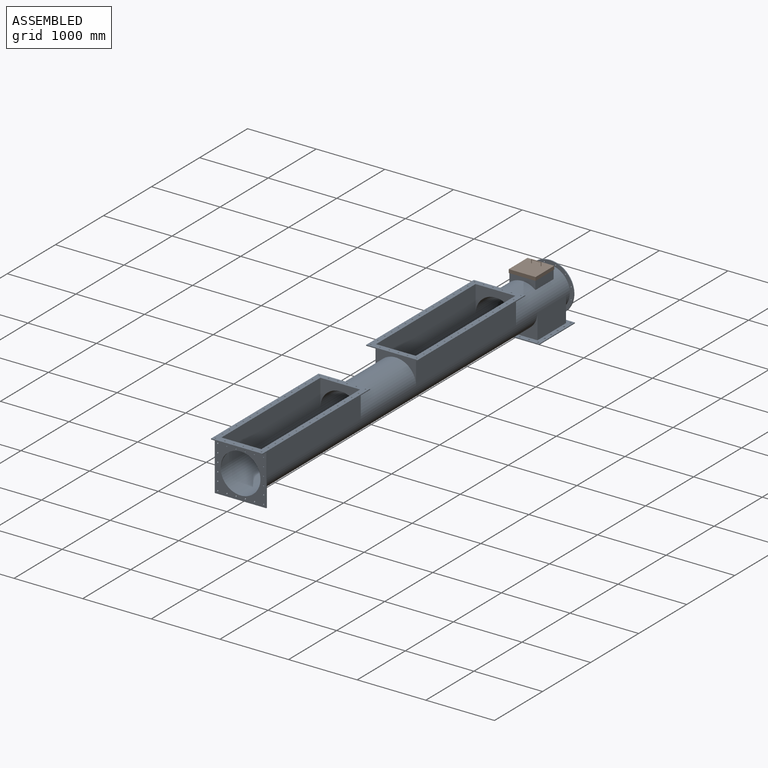
[diagram: assembled view]
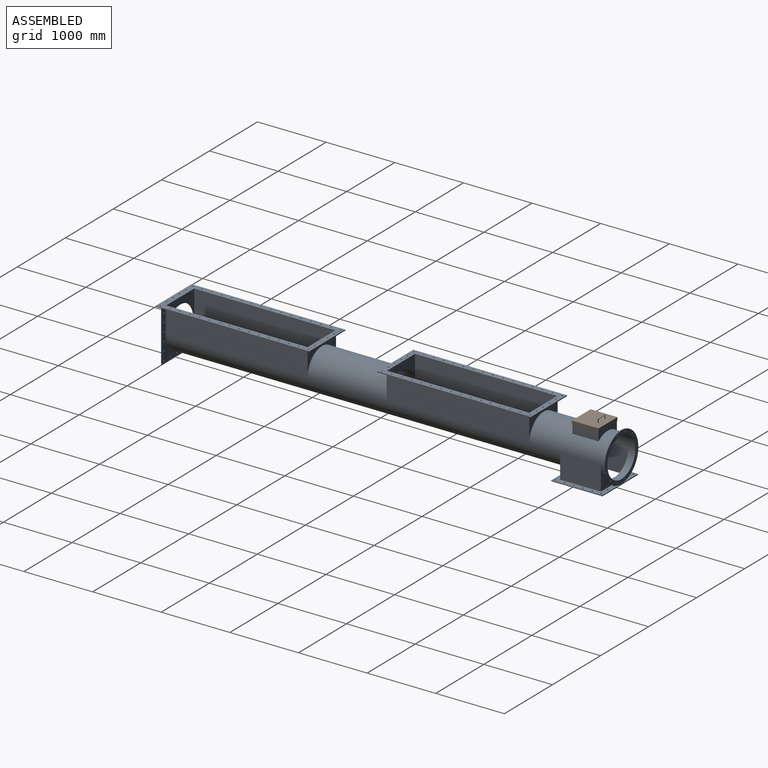
[diagram: assembled view, second angle]
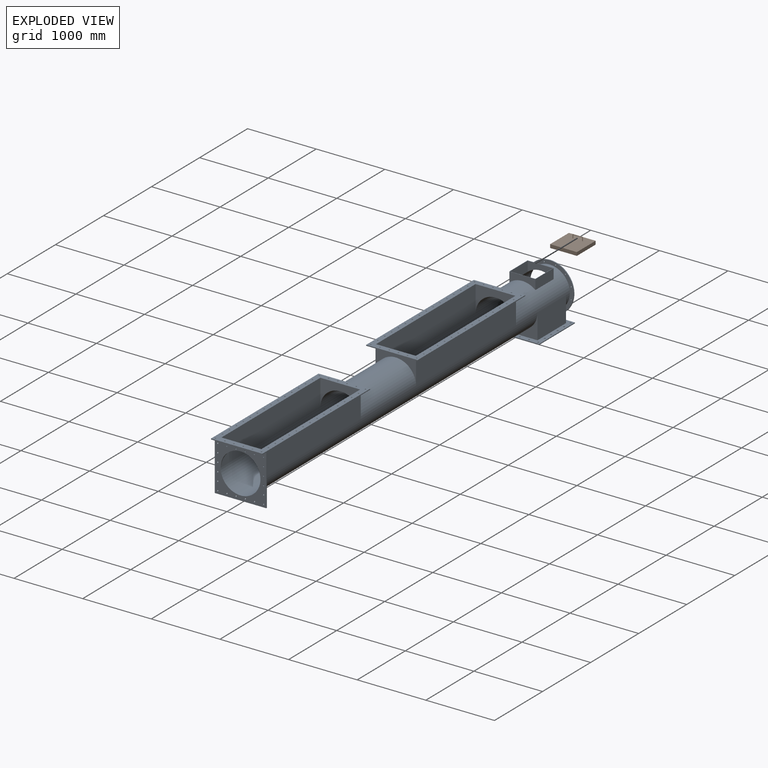
[diagram: exploded view]
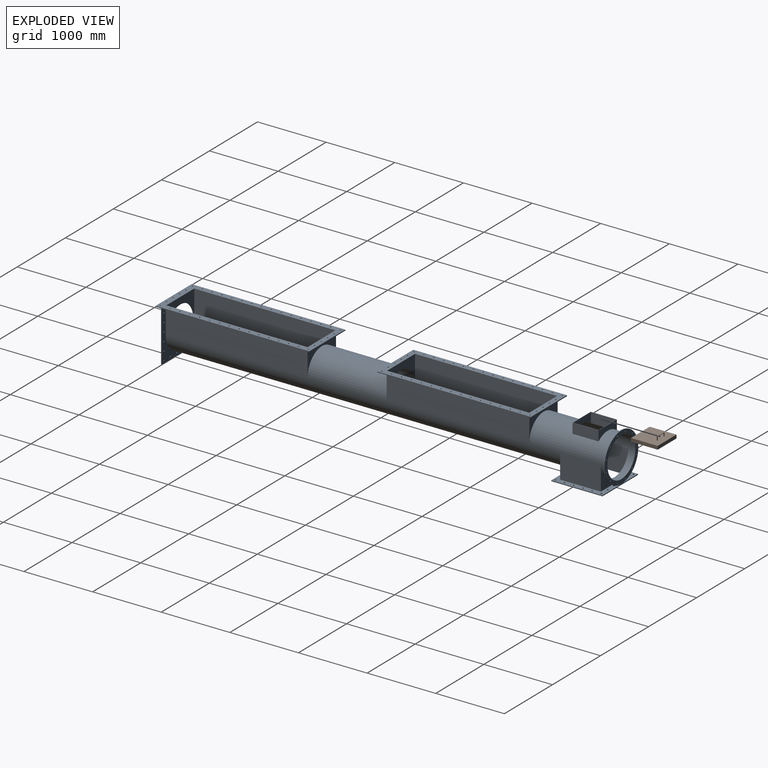
[diagram: exploded view, second angle]
ASSEMBLY  parts=2 mates=3
PART A: 207 faces, bbox 750.2x6525x770 mm
  f0: cylinder r=294.76mm len=6419.6mm, axis (0,1,0), area 7343238.7mm2, adj f15,f16,f17,f18,f36,f37,f38,f39
  f1: cylinder r=290mm len=6445mm, axis (0,1,0), area 7310439.7mm2, adj f3,f4,f5,f7,f8,f9,f11,f12
  f2: plane 380x380mm, normal (0,0,1), area 7500mm2, adj f123,f124,f125,f126,f127,f128,f129,f130
  f3: plane 750x735mm, normal (0,-1,0), area 281952.7mm2, adj f1,f131,f132,f133,f135,f184,f185,f186
  f4: plane 703.83x703.83mm, normal (0,1,0), area 122479.3mm2, adj f1,f35,f71,f72,f73,f74,f75,f76
  f5: plane 2057.78x0.02mm, normal (0,0,1), area 48.6mm2, adj f1,f7,f10,f11
  f6: plane 2057.78x393.7mm, normal (1,0,0), area 810146mm2, adj f8,f9,f12,f13,f14,f142
  f7: plane 3.7x0.02mm, normal (0,1,0), area 0mm2, adj f1,f5,f10
  f8: plane 580x390mm, normal (0,1,0), area 94096mm2, adj f1,f6,f10,f142
  f9: plane 3.7x0.02mm, normal (0,1,0), area 0mm2, adj f1,f6,f14
  f10: plane 2057.78x393.7mm, normal (-1,0,0), area 810146mm2, adj f5,f7,f8,f11,f12,f142
  f11: plane 3.7x0.02mm, normal (0,-1,0), area 0mm2, adj f1,f5,f10
  f12: plane 580x390mm, normal (0,-1,0), area 94096mm2, adj f1,f6,f10,f142
  f13: plane 3.7x0.02mm, normal (0,-1,0), area 0mm2, adj f1,f6,f14
  f14: plane 2057.78x0.02mm, normal (0,0,1), area 48.6mm2, adj f1,f6,f9,f13
  f15: plane 2080x377.3mm, normal (-1,0,0), area 784784mm2, adj f0,f17,f18,f29
  f16: plane 2080x377.3mm, normal (1,0,0), area 784784mm2, adj f0,f17,f18,f29
  f17: plane 589.53x377.3mm, normal (0,1,0), area 85949.3mm2, adj f0,f15,f16,f29
  f18: plane 589.53x377.3mm, normal (0,-1,0), area 85949.3mm2, adj f0,f15,f16,f29
  f19: plane 2070.48x0.02mm, normal (0,0,1), area 48.9mm2, adj f1,f21,f23,f24
  f20: plane 2070.48x393.7mm, normal (1,0,0), area 815146mm2, adj f22,f25,f26,f27,f28,f34
  f21: plane 3.7x0.02mm, normal (0,1,0), area 0mm2, adj f1,f19,f23
  f22: plane 580x390mm, normal (0,1,0), area 94096mm2, adj f1,f20,f23,f34
  f23: plane 2070.48x393.7mm, normal (-1,0,0), area 815146mm2, adj f19,f21,f22,f24,f25,f34
  f24: plane 3.7x0.02mm, normal (0,-1,0), area 0mm2, adj f1,f19,f23
  f25: plane 580x390mm, normal (0,-1,0), area 94096mm2, adj f1,f20,f23,f34
  f26: plane 3.7x0.02mm, normal (0,1,0), area 0mm2, adj f1,f20,f28
  f27: plane 3.7x0.02mm, normal (0,-1,0), area 0mm2, adj f1,f20,f28
  f28: plane 2070.48x0.02mm, normal (0,0,1), area 48.9mm2, adj f1,f20,f26,f27
  f29: plane 2240x750mm, normal (0,0,-1), area 443609.2mm2, adj f15,f16,f17,f18,f30,f31,f32,f33
  f30: plane 2240x12.7mm, normal (-1,0,0), area 28448mm2, adj f29,f31,f33,f34
  f31: plane 750x12.7mm, normal (0,-1,0), area 9525mm2, adj f29,f30,f32,f34
  f32: plane 2240x12.7mm, normal (1,0,0), area 28448mm2, adj f29,f31,f33,f34
  f33: plane 750x12.7mm, normal (0,1,0), area 9525mm2, adj f29,f30,f32,f34
  f34: plane 2240x750mm, normal (0,0,1), area 468945.7mm2, adj f20,f22,f23,f25,f30,f31,f32,f33
  f35: cylinder r=351.91mm len=703.83mm, axis (0,1,0), area 28081.4mm2, adj f4,f36
  f36: plane 703.83x703.83mm, normal (0,-1,0), area 113730.1mm2, adj f0,f35,f71,f72,f73,f74,f75,f76
  f37: plane 592.58x367.3mm, normal (-1,0,0), area 217655.4mm2, adj f0,f39,f40,f50
  f38: plane 592.58x367.3mm, normal (1,0,0), area 217655.4mm2, adj f0,f39,f40,f50
  f39: plane 589.53x367.3mm, normal (0,1,0), area 80054mm2, adj f0,f37,f38,f50
  f40: plane 589.53x367.3mm, normal (0,-1,0), area 80054mm2, adj f0,f37,f38,f50
  f41: plane 576.83x349.7mm, normal (0,-1,0), area 87153.7mm2, adj f1,f42,f44,f49
  f42: plane 579.82x349.7mm, normal (-1,0,0), area 202760.4mm2, adj f1,f41,f43,f49
  f43: plane 576.83x349.7mm, normal (0,1,0), area 87153.7mm2, adj f1,f42,f44,f49
  f44: plane 579.82x349.7mm, normal (1,0,0), area 202760.4mm2, adj f1,f41,f43,f49
  f45: plane 741.93x12.7mm, normal (0,1,0), area 9422.4mm2, adj f46,f48,f49,f50
  f46: plane 744.98x12.7mm, normal (1,0,0), area 9461.3mm2, adj f45,f47,f49,f50
  f47: plane 741.93x12.7mm, normal (0,-1,0), area 9422.4mm2, adj f46,f48,f49,f50
  f48: plane 744.98x12.7mm, normal (-1,0,0), area 9461.3mm2, adj f45,f47,f49,f50
  f49: plane 744.98x741.93mm, normal (0,0,-1), area 210509.4mm2, adj f41,f42,f43,f44,f45,f46,f47,f48
  f50: plane 744.98x741.93mm, normal (0,0,1), area 195619.9mm2, adj f37,f38,f39,f40,f45,f46,f47,f48
  f51: cylinder r=11.11mm len=22.23mm, axis (0,0,-1), area 886.7mm2, adj f49,f50
  f52: cylinder r=11.11mm len=22.23mm, axis (0,0,-1), area 886.7mm2, adj f49,f50
  f53: cylinder r=11.11mm len=22.23mm, axis (0,0,-1), area 886.7mm2, adj f49,f50
  f54: cylinder r=11.11mm len=22.23mm, axis (0,0,-1), area 886.7mm2, adj f49,f50
  f55: cylinder r=11.11mm len=22.23mm, axis (0,0,-1), area 886.7mm2, adj f49,f50
  f56: cylinder r=11.11mm len=22.23mm, axis (0,0,-1), area 886.7mm2, adj f49,f50
  f57: cylinder r=11.11mm len=22.23mm, axis (0,0,-1), area 886.7mm2, adj f49,f50
  f58: cylinder r=11.11mm len=22.23mm, axis (0,0,-1), area 886.7mm2, adj f49,f50
  f59: cylinder r=11.11mm len=22.23mm, axis (0,0,-1), area 886.7mm2, adj f49,f50
  f60: cylinder r=11.11mm len=22.23mm, axis (0,0,-1), area 886.7mm2, adj f49,f50
  f61: cylinder r=11.11mm len=22.23mm, axis (0,0,-1), area 886.7mm2, adj f49,f50
  f62: cylinder r=11.11mm len=22.23mm, axis (0,0,-1), area 886.7mm2, adj f49,f50
  f63: cylinder r=11.11mm len=22.23mm, axis (0,0,-1), area 886.7mm2, adj f49,f50
  f64: cylinder r=11.11mm len=22.23mm, axis (0,0,-1), area 886.7mm2, adj f49,f50
  f65: cylinder r=11.11mm len=22.23mm, axis (0,0,-1), area 886.7mm2, adj f49,f50
  f66: cylinder r=11.11mm len=22.23mm, axis (0,0,-1), area 886.7mm2, adj f49,f50
  f67: cylinder r=11.11mm len=22.23mm, axis (0,0,-1), area 886.7mm2, adj f49,f50
  f68: cylinder r=11.11mm len=22.23mm, axis (0,0,-1), area 886.7mm2, adj f49,f50
  f69: cylinder r=11.11mm len=22.23mm, axis (0,0,-1), area 886.7mm2, adj f49,f50
  f70: cylinder r=11.11mm len=22.23mm, axis (0,0,-1), area 886.7mm2, adj f49,f50
  f71: cylinder r=7.94mm len=15.88mm, axis (0,1,0), area 633.4mm2, adj f4,f36
  f72: cylinder r=7.94mm len=15.88mm, axis (0,1,0), area 633.4mm2, adj f4,f36
  f73: cylinder r=7.94mm len=15.88mm, axis (0,1,0), area 633.4mm2, adj f4,f36
  f74: cylinder r=7.94mm len=15.88mm, axis (0,1,0), area 633.4mm2, adj f4,f36
  f75: cylinder r=7.94mm len=15.88mm, axis (0,1,0), area 633.4mm2, adj f4,f36
  f76: cylinder r=7.94mm len=15.88mm, axis (0,1,0), area 633.4mm2, adj f4,f36
  f77: cylinder r=7.94mm len=15.88mm, axis (0,1,0), area 633.4mm2, adj f4,f36
  f78: cylinder r=7.94mm len=15.88mm, axis (0,1,0), area 633.4mm2, adj f4,f36
  f79: cylinder r=7.94mm len=15.88mm, axis (0,1,0), area 633.4mm2, adj f4,f36
  f80: cylinder r=7.94mm len=15.88mm, axis (0,1,0), area 633.4mm2, adj f4,f36
  f81: cylinder r=7.94mm len=15.88mm, axis (0,1,0), area 633.4mm2, adj f4,f36
  f82: cylinder r=7.94mm len=15.88mm, axis (0,1,0), area 633.4mm2, adj f4,f36
  f83: cylinder r=9mm len=18mm, axis (0,0,1), area 718.2mm2, adj f29,f34
  f84: cylinder r=9mm len=18mm, axis (0,0,1), area 718.2mm2, adj f29,f34
  f85: cylinder r=9mm len=18mm, axis (0,0,1), area 718.2mm2, adj f29,f34
  f86: cylinder r=9mm len=18mm, axis (0,0,1), area 718.2mm2, adj f29,f34
  f87: cylinder r=9mm len=18mm, axis (0,0,1), area 718.2mm2, adj f29,f34
  f88: cylinder r=9mm len=18mm, axis (0,0,1), area 718.2mm2, adj f29,f34
  f89: cylinder r=9mm len=18mm, axis (0,0,1), area 718.2mm2, adj f29,f34
  f90: cylinder r=9mm len=18mm, axis (0,0,1), area 718.2mm2, adj f29,f34
  f91: cylinder r=9mm len=18mm, axis (0,0,1), area 718.2mm2, adj f29,f34
  f92: cylinder r=9mm len=18mm, axis (0,0,1), area 718.2mm2, adj f29,f34
  f93: cylinder r=9mm len=18mm, axis (0,0,1), area 718.2mm2, adj f29,f34
  f94: cylinder r=9mm len=18mm, axis (0,0,1), area 718.2mm2, adj f29,f34
  f95: cylinder r=9mm len=18mm, axis (0,0,1), area 718.2mm2, adj f29,f34
  f96: cylinder r=9mm len=18mm, axis (0,0,1), area 718.2mm2, adj f29,f34
  f97: cylinder r=9mm len=18mm, axis (0,0,1), area 718.2mm2, adj f29,f34
  f98: cylinder r=9mm len=18mm, axis (0,0,1), area 718.2mm2, adj f29,f34
  f99: cylinder r=9mm len=18mm, axis (0,0,1), area 718.2mm2, adj f29,f34
  f100: cylinder r=9mm len=18mm, axis (0,0,1), area 718.2mm2, adj f29,f34
  f101: cylinder r=9mm len=18mm, axis (0,0,1), area 718.2mm2, adj f29,f34
  f102: cylinder r=9mm len=18mm, axis (0,0,1), area 718.2mm2, adj f29,f34
  f103: cylinder r=9mm len=18mm, axis (0,0,1), area 718.2mm2, adj f29,f34
  f104: cylinder r=9mm len=18mm, axis (0,0,1), area 718.2mm2, adj f29,f34
  f105: cylinder r=9mm len=18mm, axis (0,0,1), area 718.2mm2, adj f29,f34
  f106: cylinder r=9mm len=18mm, axis (0,0,1), area 718.2mm2, adj f29,f34
  f107: cylinder r=9mm len=18mm, axis (0,0,1), area 718.2mm2, adj f29,f34
  f108: cylinder r=9mm len=18mm, axis (0,0,1), area 718.2mm2, adj f29,f34
  f109: cylinder r=9mm len=18mm, axis (0,0,1), area 718.2mm2, adj f29,f34
  f110: cylinder r=9mm len=18mm, axis (0,0,1), area 718.2mm2, adj f29,f34
  f111: cylinder r=9mm len=18mm, axis (0,0,1), area 718.2mm2, adj f29,f34
  f112: cylinder r=9mm len=18mm, axis (0,0,1), area 718.2mm2, adj f29,f34
  f113: cylinder r=9mm len=18mm, axis (0,0,1), area 718.2mm2, adj f29,f34
  f114: cylinder r=9mm len=18mm, axis (0,0,1), area 718.2mm2, adj f29,f34
  f115: cylinder r=9mm len=18mm, axis (0,0,1), area 718.2mm2, adj f29,f34
  f116: cylinder r=9mm len=18mm, axis (0,0,1), area 718.2mm2, adj f29,f34
  f117: cylinder r=9mm len=18mm, axis (0,0,1), area 718.2mm2, adj f29,f34
  f118: cylinder r=9mm len=18mm, axis (0,0,1), area 718.2mm2, adj f29,f34
  f119: cylinder r=9mm len=18mm, axis (0,0,1), area 718.2mm2, adj f29,f34
  f120: cylinder r=9mm len=18mm, axis (0,0,1), area 718.2mm2, adj f29,f34
  f121: cylinder r=9mm len=18mm, axis (0,0,1), area 718.2mm2, adj f29,f34
  f122: cylinder r=9mm len=18mm, axis (0,0,1), area 718.2mm2, adj f29,f34
  f123: plane 380x144.65mm, normal (-1,0,0), area 54965.1mm2, adj f0,f2,f125,f126
  f124: plane 380x144.65mm, normal (1,0,0), area 54965.1mm2, adj f0,f2,f125,f126
  f125: plane 380x144.65mm, normal (0,1,0), area 36921.1mm2, adj f0,f2,f123,f124
  f126: plane 380x144.65mm, normal (0,-1,0), area 36921.1mm2, adj f0,f2,f123,f124
  f127: plane 370x146.67mm, normal (0,-1,0), area 37403.4mm2, adj f1,f2,f128,f130
  f128: plane 370x146.67mm, normal (1,0,0), area 54269mm2, adj f1,f2,f127,f129
  f129: plane 370x146.67mm, normal (0,1,0), area 37403.4mm2, adj f1,f2,f128,f130
  f130: plane 370x146.67mm, normal (-1,0,0), area 54269mm2, adj f1,f2,f127,f129
  f131: plane 2240x747.7mm, normal (-1,0,0), area 37782.5mm2, adj f3,f132,f134,f135,f136,f140,f141,f142
  f132: plane 750x12.7mm, normal (0,0,-1), area 9525mm2, adj f3,f131,f133,f134
  f133: plane 2240x747.7mm, normal (1,0,0), area 37782.5mm2, adj f3,f132,f134,f135,f136,f140,f141,f142
  f134: plane 750x735mm, normal (0,1,0), area 188272.2mm2, adj f0,f131,f132,f133,f136,f137,f138,f185
  f135: plane 750x80mm, normal (0,0,-1), area 58473.2mm2, adj f3,f131,f133,f140,f177,f178,f179,f180
  f136: plane 2147.3x750mm, normal (0,0,-1), area 383098mm2, adj f131,f133,f134,f137,f138,f139,f141,f143
  f137: plane 2067.3x377.3mm, normal (-1,0,0), area 779992.3mm2, adj f0,f134,f136,f139
  f138: plane 2067.3x377.3mm, normal (1,0,0), area 779992.3mm2, adj f0,f134,f136,f139
  f139: plane 589.53x377.3mm, normal (0,1,0), area 85949.3mm2, adj f0,f136,f137,f138
  f140: plane 750x12.7mm, normal (0,-1,0), area 9525mm2, adj f131,f133,f135,f142
  f141: plane 750x12.7mm, normal (0,1,0), area 9525mm2, adj f131,f133,f136,f142
  f142: plane 2240x750mm, normal (0,0,1), area 476311.7mm2, adj f6,f8,f10,f12,f131,f133,f140,f141
  f143: cylinder r=9mm len=18mm, axis (0,0,1), area 718.2mm2, adj f136,f142
  f144: cylinder r=9mm len=18mm, axis (0,0,1), area 718.2mm2, adj f136,f142
  f145: cylinder r=9mm len=18mm, axis (0,0,1), area 718.2mm2, adj f136,f142
  f146: cylinder r=9mm len=18mm, axis (0,0,1), area 718.2mm2, adj f136,f142
  f147: cylinder r=9mm len=18mm, axis (0,0,1), area 718.2mm2, adj f136,f142
  f148: cylinder r=9mm len=18mm, axis (0,0,1), area 718.2mm2, adj f136,f142
  f149: cylinder r=9mm len=18mm, axis (0,0,1), area 718.2mm2, adj f136,f142
  f150: cylinder r=9mm len=18mm, axis (0,0,1), area 718.2mm2, adj f136,f142
  f151: cylinder r=9mm len=18mm, axis (0,0,1), area 718.2mm2, adj f136,f142
  f152: cylinder r=9mm len=18mm, axis (0,0,1), area 718.2mm2, adj f136,f142
  f153: cylinder r=9mm len=18mm, axis (0,0,1), area 718.2mm2, adj f136,f142
  f154: cylinder r=9mm len=18mm, axis (0,0,1), area 718.2mm2, adj f136,f142
  f155: cylinder r=9mm len=18mm, axis (0,0,1), area 718.2mm2, adj f136,f142
  f156: cylinder r=9mm len=18mm, axis (0,0,1), area 718.2mm2, adj f136,f142
  f157: cylinder r=9mm len=18mm, axis (0,0,1), area 718.2mm2, adj f136,f142
  f158: cylinder r=9mm len=18mm, axis (0,0,1), area 718.2mm2, adj f136,f142
  f159: cylinder r=9mm len=18mm, axis (0,0,1), area 718.2mm2, adj f136,f142
  f160: cylinder r=9mm len=18mm, axis (0,0,1), area 718.2mm2, adj f136,f142
  f161: cylinder r=9mm len=18mm, axis (0,0,1), area 718.2mm2, adj f136,f142
  f162: cylinder r=9mm len=18mm, axis (0,0,1), area 718.2mm2, adj f136,f142
  f163: cylinder r=9mm len=18mm, axis (0,0,1), area 718.2mm2, adj f136,f142
  f164: cylinder r=9mm len=18mm, axis (0,0,1), area 718.2mm2, adj f136,f142
  f165: cylinder r=9mm len=18mm, axis (0,0,1), area 718.2mm2, adj f136,f142
  f166: cylinder r=9mm len=18mm, axis (0,0,1), area 718.2mm2, adj f136,f142
  f167: cylinder r=9mm len=18mm, axis (0,0,1), area 718.2mm2, adj f136,f142
  f168: cylinder r=9mm len=18mm, axis (0,0,1), area 718.2mm2, adj f136,f142
  f169: cylinder r=9mm len=18mm, axis (0,0,1), area 718.2mm2, adj f136,f142
  f170: cylinder r=9mm len=18mm, axis (0,0,1), area 718.2mm2, adj f136,f142
  f171: cylinder r=9mm len=18mm, axis (0,0,1), area 718.2mm2, adj f136,f142
  f172: cylinder r=9mm len=18mm, axis (0,0,1), area 718.2mm2, adj f136,f142
  f173: cylinder r=9mm len=18mm, axis (0,0,1), area 718.2mm2, adj f136,f142
  f174: cylinder r=9mm len=18mm, axis (0,0,1), area 718.2mm2, adj f136,f142
  f175: cylinder r=9mm len=18mm, axis (0,0,1), area 718.2mm2, adj f136,f142
  f176: cylinder r=9mm len=18mm, axis (0,0,1), area 718.2mm2, adj f136,f142
  f177: cylinder r=9mm len=18mm, axis (0,0,1), area 718.2mm2, adj f135,f142
  f178: cylinder r=9mm len=18mm, axis (0,0,1), area 718.2mm2, adj f135,f142
  f179: cylinder r=9mm len=18mm, axis (0,0,1), area 718.2mm2, adj f135,f142
  f180: cylinder r=9mm len=18mm, axis (0,0,1), area 718.2mm2, adj f135,f142
  f181: cylinder r=9mm len=18mm, axis (0,0,1), area 718.2mm2, adj f135,f142
  f182: cylinder r=9mm len=18mm, axis (0,0,1), area 718.2mm2, adj f135,f142
  f183: plane 18x18mm, normal (0,-1,0), area 254.5mm2, adj f184
  f184: cylinder r=9mm len=18mm, axis (0,-1,0), area 718.2mm2, adj f3,f183
  f185: cylinder r=9mm len=18mm, axis (0,-1,0), area 718.2mm2, adj f3,f134
  f186: cylinder r=9mm len=18mm, axis (0,-1,0), area 718.2mm2, adj f3,f134
  f187: cylinder r=9mm len=18mm, axis (0,-1,0), area 718.2mm2, adj f3,f134
  f188: cylinder r=9mm len=18mm, axis (0,-1,0), area 718.2mm2, adj f3,f134
  f189: cylinder r=9mm len=18mm, axis (0,-1,0), area 718.2mm2, adj f3,f134
  f190: cylinder r=9mm len=18mm, axis (0,-1,0), area 718.2mm2, adj f3,f134
  f191: cylinder r=9mm len=18mm, axis (0,-1,0), area 718.2mm2, adj f3,f134
  f192: cylinder r=9mm len=18mm, axis (0,-1,0), area 718.2mm2, adj f3,f134
  f193: plane 18x18mm, normal (0,-1,0), area 254.5mm2, adj f194
  f194: cylinder r=9mm len=18mm, axis (0,-1,0), area 718.2mm2, adj f3,f193
  f195: plane 18x18mm, normal (0,-1,0), area 254.5mm2, adj f196
  f196: cylinder r=9mm len=18mm, axis (0,-1,0), area 718.2mm2, adj f3,f195
  f197: plane 18x18mm, normal (0,-1,0), area 254.5mm2, adj f198
  f198: cylinder r=9mm len=18mm, axis (0,-1,0), area 718.2mm2, adj f3,f197
  f199: cylinder r=9mm len=18mm, axis (0,-1,0), area 718.2mm2, adj f3,f134
  f200: cylinder r=9mm len=18mm, axis (0,-1,0), area 718.2mm2, adj f3,f134
  f201: cylinder r=9mm len=18mm, axis (0,-1,0), area 718.2mm2, adj f3,f134
  f202: cylinder r=9mm len=18mm, axis (0,-1,0), area 718.2mm2, adj f3,f134
  f203: cylinder r=9mm len=18mm, axis (0,-1,0), area 718.2mm2, adj f3,f134
  f204: cylinder r=9mm len=18mm, axis (0,-1,0), area 718.2mm2, adj f3,f134
  f205: cylinder r=9mm len=18mm, axis (0,-1,0), area 718.2mm2, adj f3,f134
  f206: cylinder r=9mm len=18mm, axis (0,-1,0), area 718.2mm2, adj f3,f134
PART B: 14 faces, bbox 390x390x105 mm
  f0: plane 390x390mm, normal (0,0,1), area 151942.9mm2, adj f2,f3,f4,f5,f11,f13
  f1: plane 390x390mm, normal (0,0,-1), area 7700mm2, adj f2,f3,f4,f5,f6,f7,f8,f9
  f2: plane 390x50mm, normal (0,-1,0), area 19500mm2, adj f0,f1,f3,f5
  f3: plane 390x50mm, normal (1,0,0), area 19500mm2, adj f0,f1,f2,f4
  f4: plane 390x50mm, normal (0,1,0), area 19500mm2, adj f0,f1,f3,f5
  f5: plane 390x50mm, normal (-1,0,0), area 19500mm2, adj f0,f1,f2,f4
  f6: plane 380x20mm, normal (0,-1,0), area 7600mm2, adj f1,f7,f9,f10
  f7: plane 380x20mm, normal (-1,0,0), area 7600mm2, adj f1,f6,f8,f10
  f8: plane 380x20mm, normal (0,1,0), area 7600mm2, adj f1,f7,f9,f10
  f9: plane 380x20mm, normal (1,0,0), area 7600mm2, adj f1,f6,f8,f10
  f10: plane 380x380mm, normal (0,0,-1), area 144400mm2, adj f6,f7,f8,f9
  f11: cylinder r=5mm len=55mm, axis (0,0,-1), area 1570.8mm2, adj f0,f12
  f12: cylinder r=5mm len=150mm, axis (0,-1,0), area 4392.9mm2, adj f11,f13
  f13: cylinder r=5mm len=55mm, axis (0,0,1), area 1565.4mm2, adj f0,f12
PLACE A t=(-894.1,-644.02,297.27)mm
PLACE B rot(axis=(0,0,1),90deg) t=(-894.1,2188.48,647.27)mm
MATE planar A.f125 <-> B.f7  axis (0,1,0) through (-894.1,2378.48,616.58)mm
MATE fastened A.f2 <-> B.f10  axis (0,0,1) through (-894.1,2188.48,667.27)mm
MATE planar A.f124 <-> B.f8  axis (1,0,0) through (-704.1,2188.48,594.95)mm
